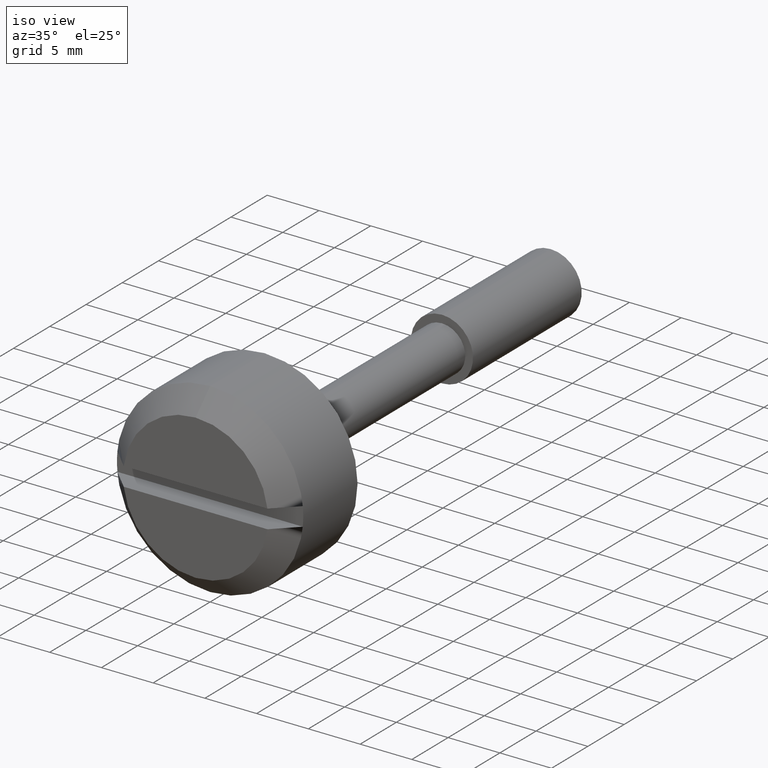
[diagram: clean part render]
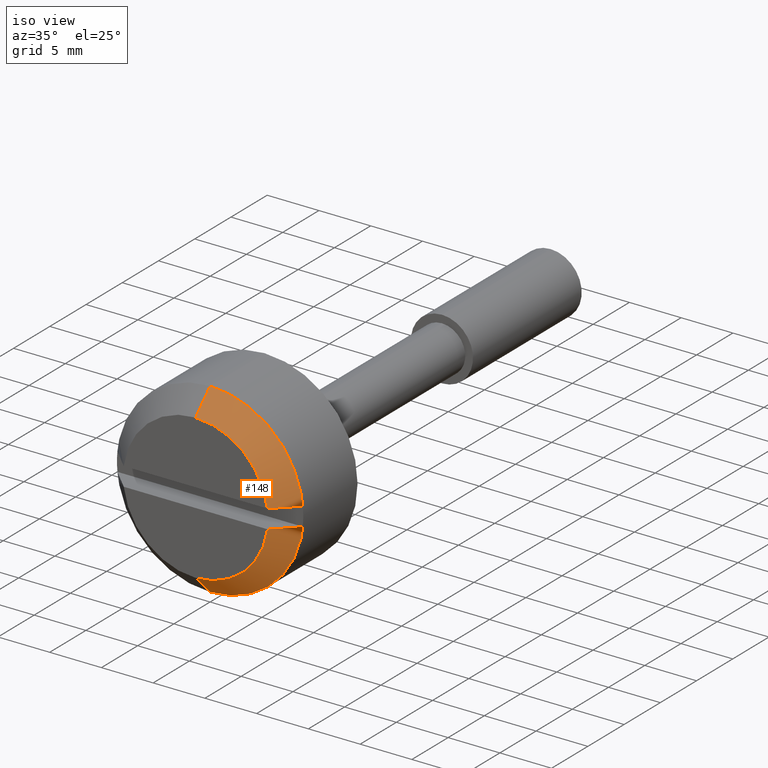
[diagram: same view with one face highlighted and labeled with its STEP entity id]
A machine part, iso view. The second image highlights one B-rep face of the part: STEP entity #148.
In plain terms, the highlighted face is a freeform B-spline surface patch.
Its self-contained STEP definition (entity closure, byte-faithful):
#148=ADVANCED_FACE('',(#520),#519,.T.);
#519=( BOUNDED_SURFACE() B_SPLINE_SURFACE( 2,1,((#776,#777),(#778,#779),(#780,#781),(#782,#783),(#784,#785)), .UNSPECIFIED.,.F.,.F.,.F.) B_SPLINE_SURFACE_WITH_KNOTS((3,2,3),(2,2),(0.00000000000E+00,5.00000000000E-01,1.00000000000E+00),(0.00000000000E+00,1.00000000000E+00), .UNSPECIFIED. ) GEOMETRIC_REPRESENTATION_ITEM() RATIONAL_B_SPLINE_SURFACE(((1.00000000000E+00,1.00000000000E+00),(7.07106781187E-01,7.07106781187E-01),(1.00000000000E+00,1.00000000000E+00),(7.07106781187E-01,7.07106781187E-01),(1.00000000000E+00,1.00000000000E+00))) REPRESENTATION_ITEM('') SURFACE() );
#520=FACE_OUTER_BOUND('',#786,.T.);
#776=CARTESIAN_POINT('',(-1.20001291591E+01,-1.71444939100E-15,6.99977084086E+00));
#777=CARTESIAN_POINT('',(-9.99977084086E+00,-2.20439587333E-15,9.00012915914E+00));
#778=CARTESIAN_POINT('',(-1.20001291591E+01,-6.99977084086E+00,6.99977084086E+00));
#779=CARTESIAN_POINT('',(-9.99977084086E+00,-9.00012915914E+00,9.00012915914E+00));
#780=CARTESIAN_POINT('',(-1.20001291591E+01,-6.99977084086E+00,-1.28583704325E-15));
#781=CARTESIAN_POINT('',(-9.99977084086E+00,-9.00012915914E+00,-1.65329690500E-15));
#782=CARTESIAN_POINT('',(-1.20001291591E+01,-6.99977084086E+00,-6.99977084086E+00));
#783=CARTESIAN_POINT('',(-9.99977084086E+00,-9.00012915914E+00,-9.00012915914E+00));
#784=CARTESIAN_POINT('',(-1.20001291591E+01,8.57224695502E-16,-6.99977084086E+00));
#785=CARTESIAN_POINT('',(-9.99977084086E+00,1.10219793667E-15,-9.00012915914E+00));
#786=EDGE_LOOP('',(#1000,#1001,#1002,#1003,#1004,#1005,#1006,#1007));
#1000=ORIENTED_EDGE('',*,*,#1121,.T.);
#1001=ORIENTED_EDGE('',*,*,#1122,.F.);
#1002=ORIENTED_EDGE('',*,*,#1099,.F.);
#1003=ORIENTED_EDGE('',*,*,#1103,.F.);
#1004=ORIENTED_EDGE('',*,*,#1107,.F.);
#1005=ORIENTED_EDGE('',*,*,#1109,.F.);
#1006=ORIENTED_EDGE('',*,*,#1097,.F.);
#1007=ORIENTED_EDGE('',*,*,#1123,.T.);
#1097=EDGE_CURVE('',#1575,#1582,#1583,.T.);
#1099=EDGE_CURVE('',#1595,#1596,#1597,.T.);
#1103=EDGE_CURVE('',#1617,#1595,#1624,.T.);
#1107=EDGE_CURVE('',#1643,#1617,#1650,.T.);
#1109=EDGE_CURVE('',#1582,#1643,#1662,.T.);
#1121=EDGE_CURVE('',#1719,#1718,#1738,.T.);
#1122=EDGE_CURVE('',#1596,#1718,#1744,.T.);
#1123=EDGE_CURVE('',#1575,#1719,#1750,.T.);
#1575=VERTEX_POINT('',#2072);
#1582=VERTEX_POINT('',#2077);
#1583=CIRCLE('',#2081,7.00000000000E+00);
#1595=VERTEX_POINT('',#2085);
#1596=VERTEX_POINT('',#2086);
#1597=CIRCLE('',#2090,7.00000000000E+00);
#1617=VERTEX_POINT('',#2100);
#1624=(BOUNDED_CURVE() B_SPLINE_CURVE(3,(#2104,#2105,#2106,#2107),.UNSPECIFIED.,.F.,.F.) B_SPLINE_CURVE_WITH_KNOTS((4,4),(1.52743872715E-02,1.81118693173E-02),.UNSPECIFIED.) CURVE() GEOMETRIC_REPRESENTATION_ITEM() RATIONAL_B_SPLINE_CURVE((1.00000000000E+00,1.00000000000E+00,1.00000000000E+00,1.00000000000E+00)) REPRESENTATION_ITEM('') );
#1643=VERTEX_POINT('',#2117);
#1650=CIRCLE('',#2124,8.99990000000E+00);
#1662=(BOUNDED_CURVE() B_SPLINE_CURVE(3,(#2129,#2130,#2131,#2132),.UNSPECIFIED.,.F.,.F.) B_SPLINE_CURVE_WITH_KNOTS((4,4),(3.68298790015E-02,3.96928572528E-02),.UNSPECIFIED.) CURVE() GEOMETRIC_REPRESENTATION_ITEM() RATIONAL_B_SPLINE_CURVE((1.00000000000E+00,1.00000000000E+00,1.00000000000E+00,1.00000000000E+00)) REPRESENTATION_ITEM('') );
#1718=VERTEX_POINT('',#2155);
#1719=VERTEX_POINT('',#2156);
#1738=CIRCLE('',#2168,9.00000000000E+00);
#1744=(BOUNDED_CURVE() B_SPLINE_CURVE(1,(#2169,#2170),.UNSPECIFIED.,.F.,.F.) B_SPLINE_CURVE_WITH_KNOTS((2,2),(1.14550194150E-04,9.99935425764E-01),.UNSPECIFIED.) CURVE() GEOMETRIC_REPRESENTATION_ITEM() RATIONAL_B_SPLINE_CURVE((1.00000000000E+00,1.00000000000E+00)) REPRESENTATION_ITEM('') );
#1750=(BOUNDED_CURVE() B_SPLINE_CURVE(1,(#2171,#2172),.UNSPECIFIED.,.F.,.F.) B_SPLINE_CURVE_WITH_KNOTS((2,2),(0.00000000000E+00,1.00000000000E+00),.UNSPECIFIED.) CURVE() GEOMETRIC_REPRESENTATION_ITEM() RATIONAL_B_SPLINE_CURVE((7.50000000000E-01,7.50000000000E-01)) REPRESENTATION_ITEM('') );
#2072=CARTESIAN_POINT('',(-1.19999000000E+01,1.77635683940E-15,-7.00000000000E+00));
#2077=CARTESIAN_POINT('',(-1.19999000000E+01,-6.94190175672E+00,-9.00000000000E-01));
#2078=CARTESIAN_POINT('',(-1.19999000000E+01,0.00000000000E+00,0.00000000000E+00));
#2079=DIRECTION('',(-1.00000000000E+00,0.00000000000E+00,0.00000000000E+00));
#2080=DIRECTION('',(-0.00000000000E+00,9.91700250960E-01,-1.28571428571E-01));
#2081=AXIS2_PLACEMENT_3D('',#2078,#2079,#2080);
#2085=CARTESIAN_POINT('',(-1.19999000000E+01,-6.94190175672E+00,9.00000000000E-01));
#2086=CARTESIAN_POINT('',(-1.19999000000E+01,-4.61127424522E-06,7.00000000000E+00));
#2087=CARTESIAN_POINT('',(-1.19999000000E+01,0.00000000000E+00,0.00000000000E+00));
#2088=DIRECTION('',(-1.00000000000E+00,0.00000000000E+00,0.00000000000E+00));
#2089=DIRECTION('',(-0.00000000000E+00,-0.00000000000E+00,-1.00000000000E+00));
#2090=AXIS2_PLACEMENT_3D('',#2087,#2088,#2089);
#2100=CARTESIAN_POINT('',(-1.00000000000E+01,-8.95478643017E+00,9.00000000000E-01));
#2104=CARTESIAN_POINT('',(-1.00000000000E+01,-8.95478643017E+00,9.00000000000E-01));
#2105=CARTESIAN_POINT('',(-1.06671184612E+01,-8.28430707420E+00,9.00000000000E-01));
#2106=CARTESIAN_POINT('',(-1.13338914218E+01,-7.61348430153E+00,9.00000000000E-01));
#2107=CARTESIAN_POINT('',(-1.19999000000E+01,-6.94190175672E+00,9.00000000000E-01));
#2117=CARTESIAN_POINT('',(-1.00000000000E+01,-8.95478643017E+00,-9.00000000000E-01));
#2121=CARTESIAN_POINT('',(-1.00000000000E+01,0.00000000000E+00,0.00000000000E+00));
#2122=DIRECTION('',(-1.00000000000E+00,0.00000000000E+00,0.00000000000E+00));
#2123=DIRECTION('',(-0.00000000000E+00,-0.00000000000E+00,-1.00000000000E+00));
#2124=AXIS2_PLACEMENT_3D('',#2121,#2122,#2123);
#2129=CARTESIAN_POINT('',(-1.19999000000E+01,-6.94190175672E+00,-9.00000000000E-01));
#2130=CARTESIAN_POINT('',(-1.13338924097E+01,-7.61348330534E+00,-9.00000000000E-01));
#2131=CARTESIAN_POINT('',(-1.06671192296E+01,-8.28430630192E+00,-9.00000000000E-01));
#2132=CARTESIAN_POINT('',(-1.00000000000E+01,-8.95478643017E+00,-9.00000000000E-01));
#2155=CARTESIAN_POINT('',(-9.99990000000E+00,0.00000000000E+00,9.00000000000E+00));
#2156=CARTESIAN_POINT('',(-9.99990000000E+00,5.92118946467E-16,-9.00000000000E+00));
#2165=CARTESIAN_POINT('',(-9.99990000000E+00,0.00000000000E+00,0.00000000000E+00));
#2166=DIRECTION('',(-1.00000000000E+00,0.00000000000E+00,0.00000000000E+00));
#2167=DIRECTION('',(0.00000000000E+00,-1.22460635382E-16,1.00000000000E+00));
#2168=AXIS2_PLACEMENT_3D('',#2165,#2166,#2167);
#2169=CARTESIAN_POINT('',(-1.19999000177E+01,-1.71444889101E-15,6.99999998229E+00));
#2170=CARTESIAN_POINT('',(-9.99990001247E+00,-2.20429143383E-15,8.99999998753E+00));
#2171=CARTESIAN_POINT('',(-1.20001291591E+01,2.07241631263E-15,-6.99977084086E+00));
#2172=CARTESIAN_POINT('',(-9.99977084086E+00,2.07241631263E-15,-9.00012915914E+00));